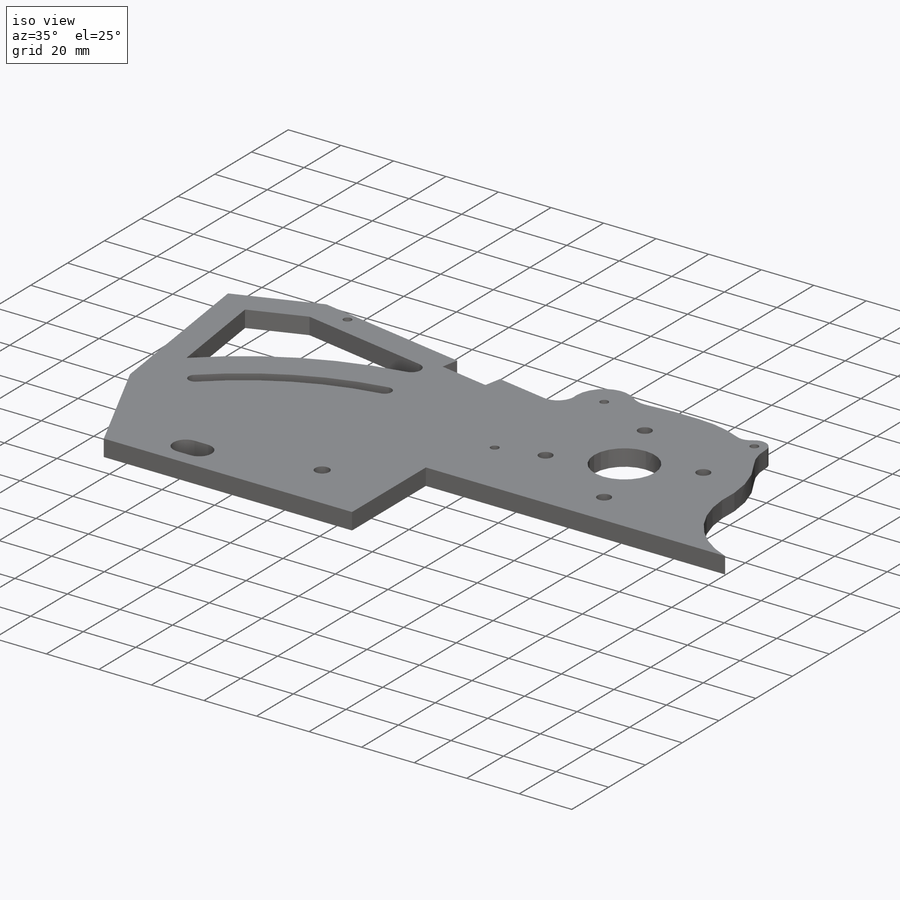
[diagram: iso view]
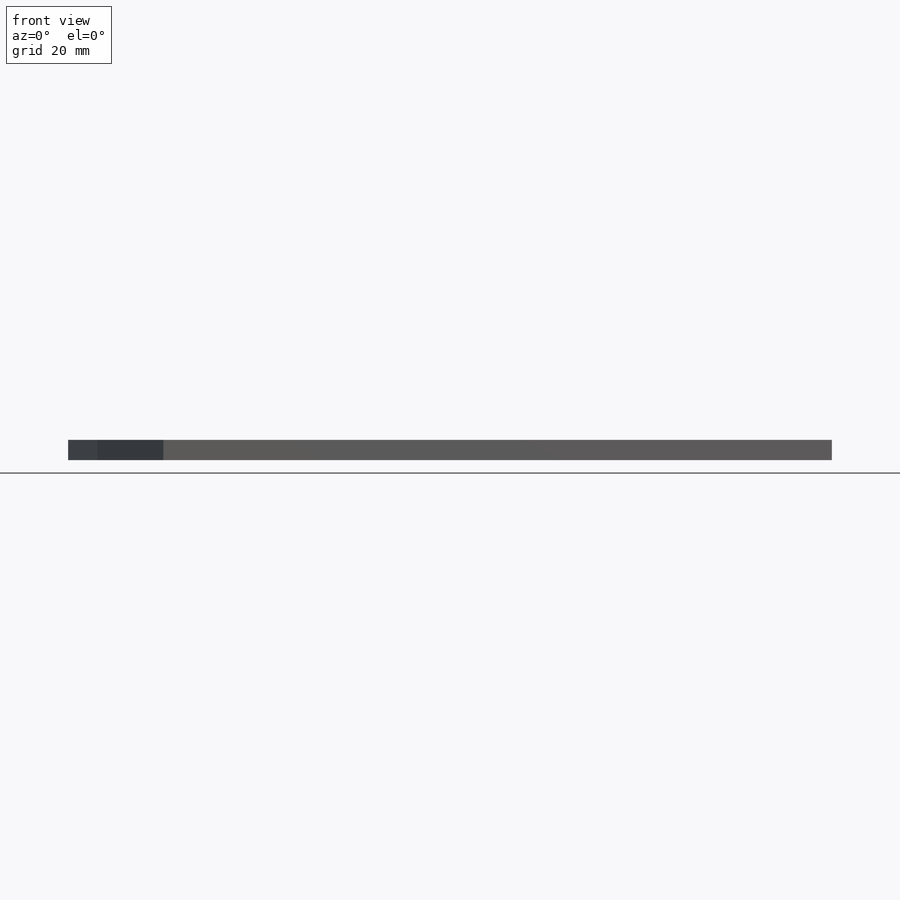
[diagram: front view]
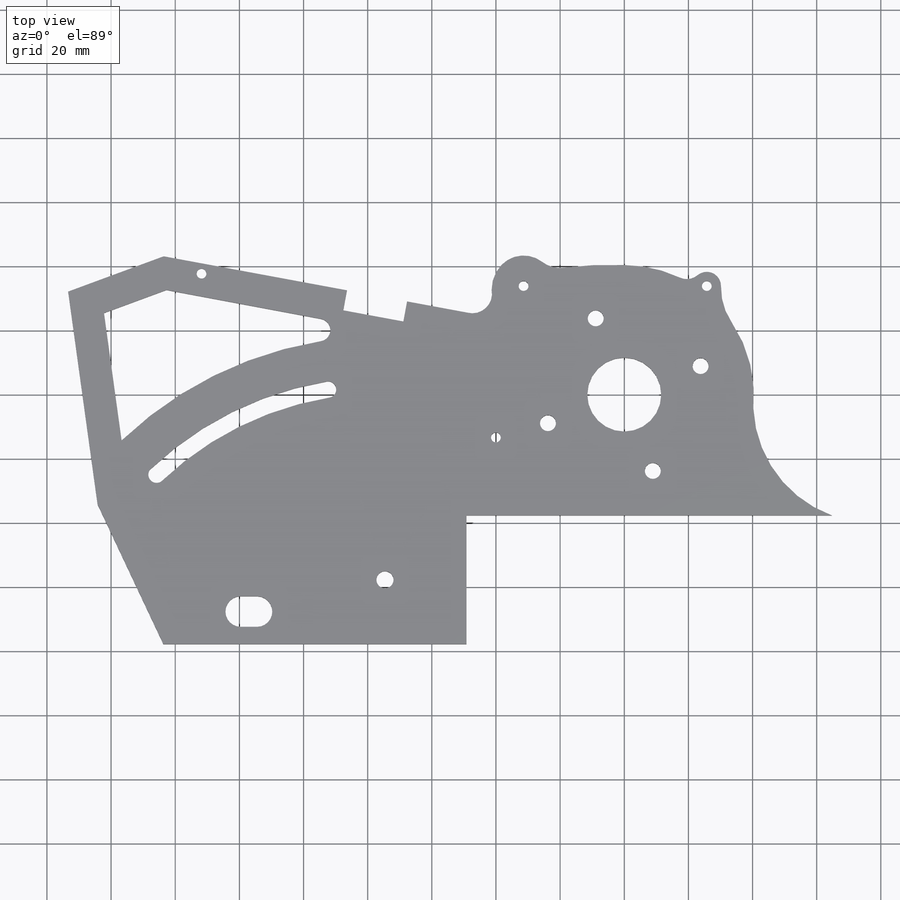
[diagram: top view]
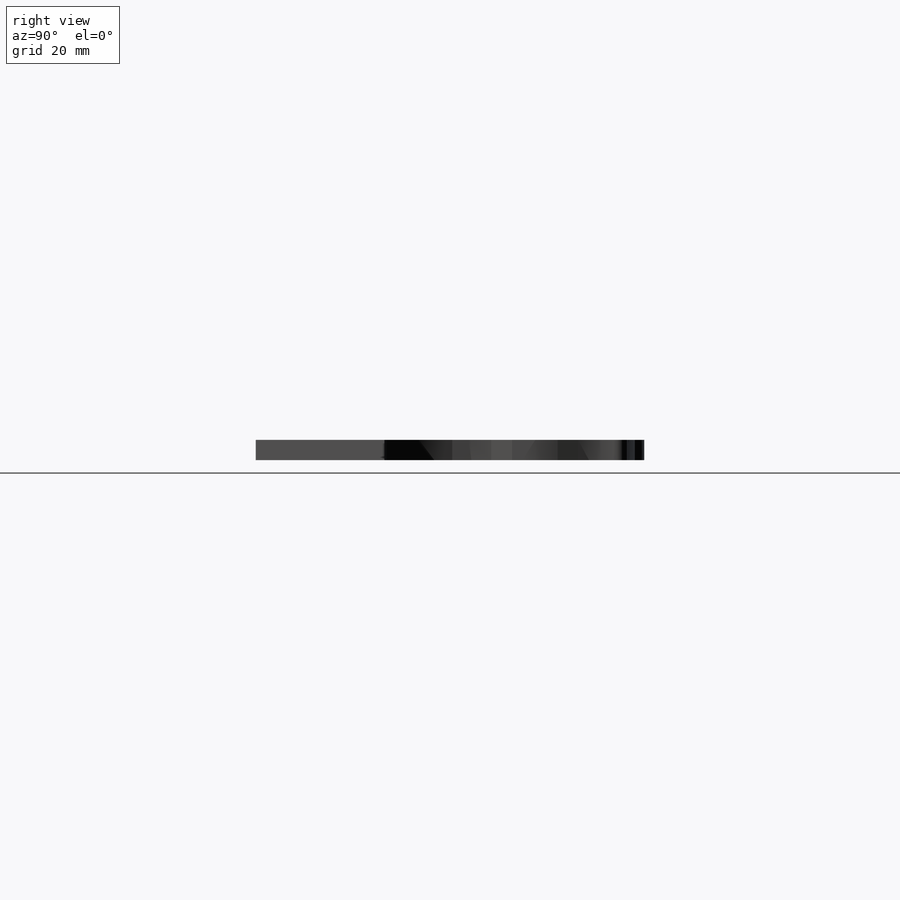
[diagram: right view]
SOLIDWORKS PART (.sldprt)
format: sldprt  version: not decoded by parser v0  size: 261,632 bytes
history: native  units: mm
features: sketch x2, material x1, extrude x1, chamfer x1, cut_extrude x1 (+11 scaffold rows collapsed)
feature tree (17):
  scaffold x11  (default folders/planes/origin — collapsed)
  material  "Material <not specified>"
  sketch  "Sketch1"  dims[c1.D1=68.072mm c1.D2=12.7mm c1.D3=19.05mm c1.D6=3.048mm c1.D11=152.4mm c1.D12=6.604mm c1.D13=3.048mm c1.D8=3.048mm c1.D14=8.89mm c2.D2=6.35mm c2.D4=101.6mm c2.D5=40.132mm c2.D1=31.75mm c3.D4=95.25mm c3.D5=19.05mm c3.D7=19.05mm c3.D8=19.05mm c3.D9=19.05mm c3.D10=6.35mm c4.D5=12.7mm c4.D7=5.08mm]
  extrude  "Boss-Extrude1"  Depth=6.35mm
  chamfer  "Chamfer1"  Distance=1.905mm Angle=45deg
  sketch  "Sketch2"  dims[D1=2.2606mm]
  cut_extrude  "Cut-Extrude1"  Depth=12.7mm
decode coverage: 5 of 5 modeling features carry decoded parameters
note: suppression state not decoded; provenance and decode notes live in map.json
